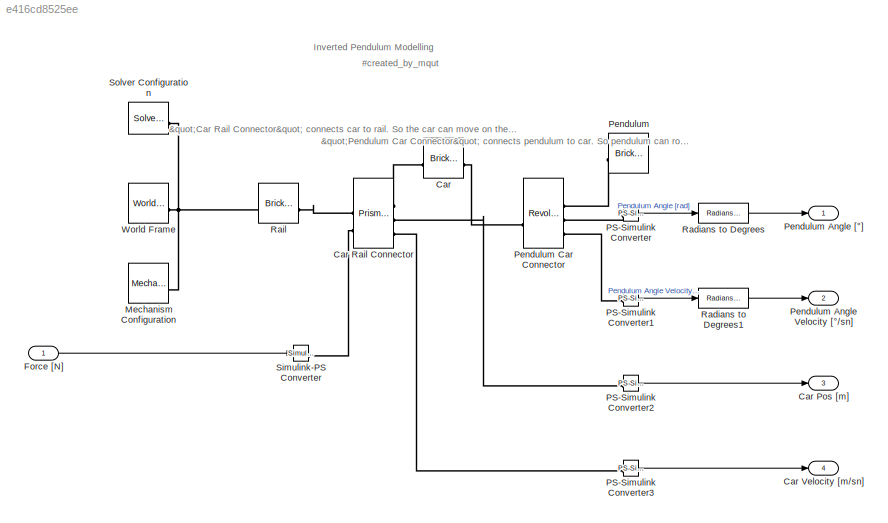
MODEL slx_e416cd8525ee
KIND model
CONFIG AbsTol = 1e-3
CONFIG EnableMultiTasking = on
CONFIG FixedStep = 1/100
CONFIG MaxStep = auto
CONFIG MinStep = auto
CONFIG RelTol = 1e-3
CONFIG SampleTimeConstraint = Unconstrained
CONFIG SolverName = ode4
CONFIG StartTime = 0.0
CONFIG StopTime = 10.0
BLOCK [Reference] Car  REF=sm_lib/Body Elements/Brick Solid
  SourceBlock = sm_lib/Body Elements/Brick Solid
  SourceType = Brick Solid
BLOCK [Outport] Car Pos [m]
  Port = 3
BLOCK [Reference] Car Rail Connector  REF=sm_lib/Joints/Prismatic
Joint
  SourceBlock = sm_lib/Joints/Prismatic\nJoint
  SourceType = Prismatic\nJoint
BLOCK [Outport] Car Velocity [m//sn]
  Port = 4
BLOCK [Inport] Force [N]
BLOCK [Reference] Mechanism Configuration  REF=sm_lib/Utilities/Mechanism
Configuration
  SourceBlock = sm_lib/Utilities/Mechanism\nConfiguration
  SourceType = Mechanism\nConfiguration
BLOCK [Reference] PS-Simulink Converter  REF=nesl_utility/PS-Simulink
Converter
  SourceBlock = nesl_utility/PS-Simulink\nConverter
  SourceType = PS-Simulink\nConverter
BLOCK [Reference] PS-Simulink Converter1  REF=nesl_utility/PS-Simulink
Converter
  SourceBlock = nesl_utility/PS-Simulink\nConverter
  SourceType = PS-Simulink\nConverter
BLOCK [Reference] PS-Simulink Converter2  REF=nesl_utility/PS-Simulink
Converter
  SourceBlock = nesl_utility/PS-Simulink\nConverter
  SourceType = PS-Simulink\nConverter
BLOCK [Reference] PS-Simulink Converter3  REF=nesl_utility/PS-Simulink
Converter
  SourceBlock = nesl_utility/PS-Simulink\nConverter
  SourceType = PS-Simulink\nConverter
BLOCK [Reference] Pendulum  REF=sm_lib/Body Elements/Brick Solid
  SourceBlock = sm_lib/Body Elements/Brick Solid
  SourceType = Brick Solid
BLOCK [Outport] Pendulum Angle Velocity [°//sn]
  Port = 2
BLOCK [Outport] Pendulum Angle [°]
BLOCK [Reference] Pendulum Car Connector  REF=sm_lib/Joints/Revolute Joint
  SourceBlock = sm_lib/Joints/Revolute Joint
  SourceType = Revolute Joint
BLOCK [Reference] Radians to Degrees  REF=simulink_extras/Transformations/Radians
to Degrees
  NameLocation = top
  SourceBlock = simulink_extras/Transformations/Radians\nto Degrees
  SourceType = RadiansToDegrees
BLOCK [Reference] Radians to Degrees1  REF=simulink_extras/Transformations/Radians
to Degrees
  NameLocation = top
  SourceBlock = simulink_extras/Transformations/Radians\nto Degrees
  SourceType = RadiansToDegrees
BLOCK [Reference] Rail  REF=sm_lib/Body Elements/Brick Solid
  SourceBlock = sm_lib/Body Elements/Brick Solid
  SourceType = Brick Solid
BLOCK [Reference] Simulink-PS Converter  REF=nesl_utility/Simulink-PS
Converter
  SourceBlock = nesl_utility/Simulink-PS\nConverter
  SourceType = Simulink-PS\nConverter
BLOCK [Reference] Solver Configuration  REF=nesl_utility/Solver
Configuration
  SourceBlock = nesl_utility/Solver\nConfiguration
  SourceType = Solver\nConfiguration
BLOCK [Reference] World Frame  REF=sm_lib/Frames and
Transforms/World Frame
  SourceBlock = sm_lib/Frames and\nTransforms/World Frame
  SourceType = World Frame
ANNOTATION (root): Inverted Pendulum Modelling
ANNOTATION (root): # created_by_mqut
ANNOTATION (root): "Car Rail Connector" connects car to rail. So the car can move on the rail
ANNOTATION (root): "Pendulum Car Connector" connects pendulum to car. So pendulum can rotating .
LINE Force [N]:1 -> Simulink-PS Converter:1
LINE PS-Simulink Converter1:1 -> Radians to Degrees1:1
LINE PS-Simulink Converter2:1 -> Car Pos [m]:1
LINE PS-Simulink Converter3:1 -> Car Velocity [m//sn]:1
LINE PS-Simulink Converter:1 -> Radians to Degrees:1
LINE Radians to Degrees1:1 -> Pendulum Angle Velocity [°//sn]:1
LINE Radians to Degrees:1 -> Pendulum Angle [°]:1
PLINE Car Rail Connector:LConn1 -- Rail:LConn1
PLINE Car Rail Connector:LConn2 -- Simulink-PS Converter:RConn1
PLINE Car Rail Connector:RConn1 -- Car:LConn1
PLINE Car Rail Connector:RConn2 -- PS-Simulink Converter2:LConn1
PLINE Car Rail Connector:RConn3 -- PS-Simulink Converter3:LConn1
PLINE Car:RConn1 -- Pendulum Car Connector:LConn1
PNET net1: Mechanism Configuration:RConn1 -- Rail:RConn1 -- Solver Configuration:RConn1 -- World Frame:RConn1
PLINE PS-Simulink Converter1:LConn1 -- Pendulum Car Connector:RConn3
PLINE PS-Simulink Converter:LConn1 -- Pendulum Car Connector:RConn2
PLINE Pendulum Car Connector:RConn1 -- Pendulum:LConn1
note: PNET lines group multi-terminal physical nets as a canonical sorted terminal list (undirected conserving connections); 2-terminal nets keep the pairwise PLINE form
